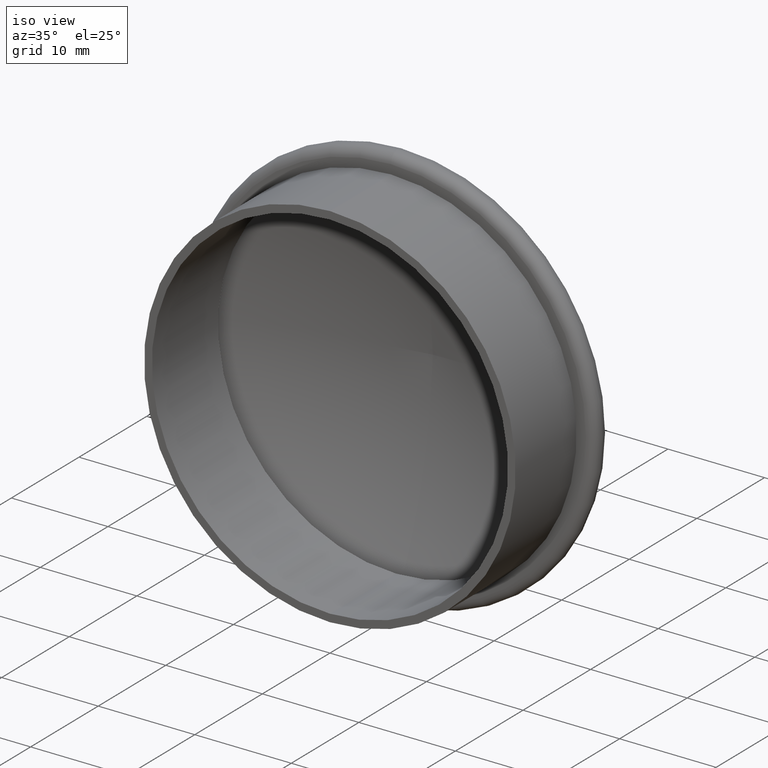
[diagram: clean part render]
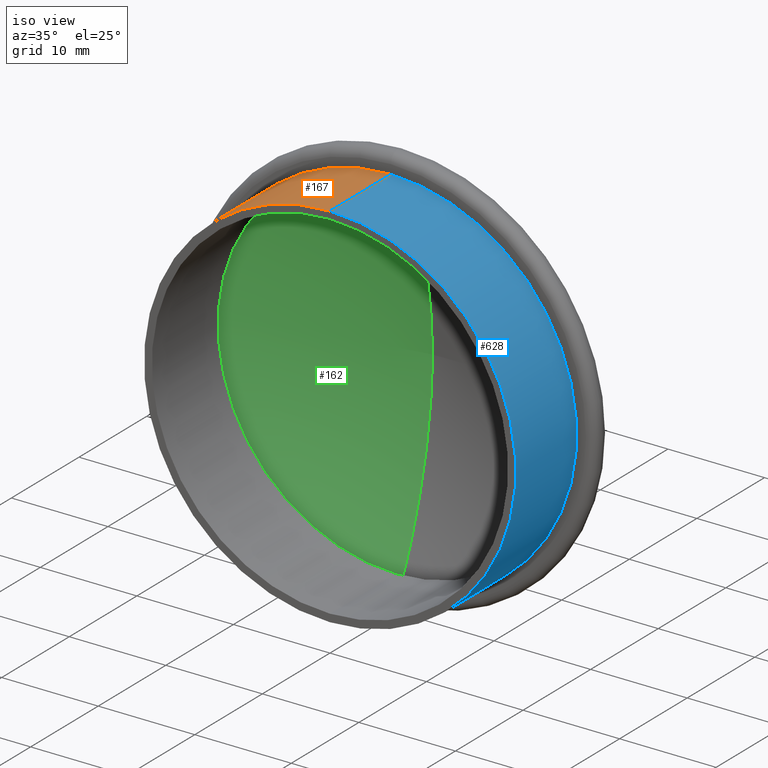
[diagram: same view with three faces highlighted in distinct colors, each labeled with its STEP entity id]
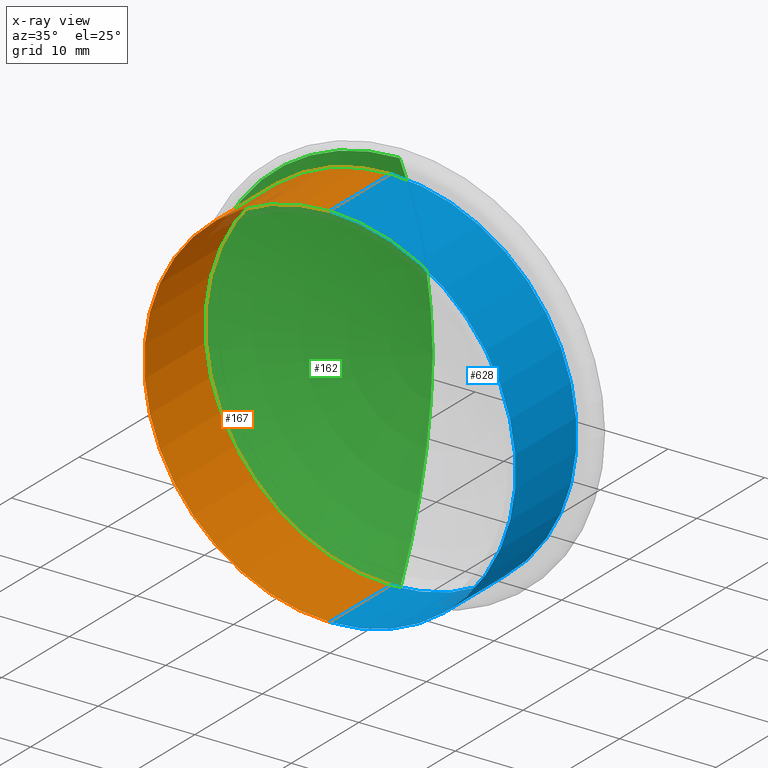
[diagram: x-ray of the same camera — body ghosted, the three highlighted faces saturated]
A machine part, iso view with three faces highlighted in distinct colors.
The next image is the same camera in x-ray (body ghosted, the three faces saturated) — at least one of them is partly hidden behind the body in this view.
Their STEP definitions:

[orange] entity #167 — the highlighted cylindrical surface (partial cylindrical patch) has radius 19.25 mm, axis along (-0, -1, -0).
#17 = ORIENTED_EDGE ( 'NONE', *, *, #348, .T. ) ;
#18 = DIRECTION ( 'NONE',  ( 0.0000000000000000000, 0.0000000000000000000, -1.000000000000000000 ) ) ;
#31 = DIRECTION ( 'NONE',  ( 0.0000000000000000000, 0.0000000000000000000, -1.000000000000000000 ) ) ;
#33 = CYLINDRICAL_SURFACE ( 'NONE', #390, 19.25000000000000400 ) ;
#42 = CARTESIAN_POINT ( 'NONE',  ( 0.0000000000000000000, 9.000000000000000000, 0.0000000000000000000 ) ) ;
#54 = LINE ( 'NONE', #250, #581 ) ;
#71 = CARTESIAN_POINT ( 'NONE',  ( 0.0000000000000000000, 0.0000000000000000000, -19.25000000000000400 ) ) ;
#85 = VERTEX_POINT ( 'NONE', #528 ) ;
#93 = DIRECTION ( 'NONE',  ( -0.0000000000000000000, -1.000000000000000000, -0.0000000000000000000 ) ) ;
#97 = VECTOR ( 'NONE', #428, 1000.000000000000000 ) ;
#100 = EDGE_CURVE ( 'NONE', #248, #85, #154, .T. ) ;
#120 = VERTEX_POINT ( 'NONE', #314 ) ;
#125 = DIRECTION ( 'NONE',  ( -0.0000000000000000000, -1.000000000000000000, -0.0000000000000000000 ) ) ;
#131 = VERTEX_POINT ( 'NONE', #148 ) ;
#138 = CARTESIAN_POINT ( 'NONE',  ( 2.357445088358655500E-015, 0.0000000000000000000, 19.25000000000000400 ) ) ;
#148 = CARTESIAN_POINT ( 'NONE',  ( 2.357445088358655500E-015, 9.000000000000000000, 19.25000000000000400 ) ) ;
#154 = CIRCLE ( 'NONE', #394, 19.25000000000000400 ) ;
#160 = CIRCLE ( 'NONE', #358, 19.25000000000000400 ) ;
#167 = ADVANCED_FACE ( 'NONE', ( #351 ), #33, .T. ) ;
#171 = ORIENTED_EDGE ( 'NONE', *, *, #335, .T. ) ;
#196 = DIRECTION ( 'NONE',  ( -0.0000000000000000000, -1.000000000000000000, -0.0000000000000000000 ) ) ;
#206 = EDGE_CURVE ( 'NONE', #131, #248, #54, .T. ) ;
#248 = VERTEX_POINT ( 'NONE', #138 ) ;
#250 = CARTESIAN_POINT ( 'NONE',  ( 2.357445088358655500E-015, 0.0000000000000000000, 19.25000000000000400 ) ) ;
#314 = CARTESIAN_POINT ( 'NONE',  ( 0.0000000000000000000, 9.000000000000000000, -19.25000000000000400 ) ) ;
#335 = EDGE_CURVE ( 'NONE', #131, #120, #160, .T. ) ;
#348 = EDGE_CURVE ( 'NONE', #120, #85, #505, .T. ) ;
#351 = FACE_OUTER_BOUND ( 'NONE', #417, .T. ) ;
#358 = AXIS2_PLACEMENT_3D ( 'NONE', #42, #93, #555 ) ;
#378 = ORIENTED_EDGE ( 'NONE', *, *, #206, .F. ) ;
#390 = AXIS2_PLACEMENT_3D ( 'NONE', #627, #125, #31 ) ;
#394 = AXIS2_PLACEMENT_3D ( 'NONE', #458, #196, #18 ) ;
#417 = EDGE_LOOP ( 'NONE', ( #378, #171, #17, #418 ) ) ;
#418 = ORIENTED_EDGE ( 'NONE', *, *, #100, .F. ) ;
#428 = DIRECTION ( 'NONE',  ( -0.0000000000000000000, -1.000000000000000000, -0.0000000000000000000 ) ) ;
#455 = DIRECTION ( 'NONE',  ( -0.0000000000000000000, -1.000000000000000000, -0.0000000000000000000 ) ) ;
#458 = CARTESIAN_POINT ( 'NONE',  ( 0.0000000000000000000, 0.0000000000000000000, 0.0000000000000000000 ) ) ;
#505 = LINE ( 'NONE', #71, #97 ) ;
#528 = CARTESIAN_POINT ( 'NONE',  ( 0.0000000000000000000, 0.0000000000000000000, -19.25000000000000400 ) ) ;
#555 = DIRECTION ( 'NONE',  ( 0.0000000000000000000, 0.0000000000000000000, -1.000000000000000000 ) ) ;
#581 = VECTOR ( 'NONE', #455, 1000.000000000000000 ) ;
#627 = CARTESIAN_POINT ( 'NONE',  ( 0.0000000000000000000, 0.0000000000000000000, 0.0000000000000000000 ) ) ;

[blue] entity #628 — the highlighted cylindrical surface (partial cylindrical patch) has radius 19.25 mm, axis along (-0, -1, -0).
#32 = AXIS2_PLACEMENT_3D ( 'NONE', #550, #243, #136 ) ;
#41 = DIRECTION ( 'NONE',  ( -0.0000000000000000000, -1.000000000000000000, -0.0000000000000000000 ) ) ;
#45 = EDGE_CURVE ( 'NONE', #120, #131, #408, .T. ) ;
#54 = LINE ( 'NONE', #250, #581 ) ;
#71 = CARTESIAN_POINT ( 'NONE',  ( 0.0000000000000000000, 0.0000000000000000000, -19.25000000000000400 ) ) ;
#85 = VERTEX_POINT ( 'NONE', #528 ) ;
#97 = VECTOR ( 'NONE', #428, 1000.000000000000000 ) ;
#120 = VERTEX_POINT ( 'NONE', #314 ) ;
#131 = VERTEX_POINT ( 'NONE', #148 ) ;
#136 = DIRECTION ( 'NONE',  ( 0.0000000000000000000, 0.0000000000000000000, -1.000000000000000000 ) ) ;
#138 = CARTESIAN_POINT ( 'NONE',  ( 2.357445088358655500E-015, 0.0000000000000000000, 19.25000000000000400 ) ) ;
#148 = CARTESIAN_POINT ( 'NONE',  ( 2.357445088358655500E-015, 9.000000000000000000, 19.25000000000000400 ) ) ;
#155 = AXIS2_PLACEMENT_3D ( 'NONE', #468, #465, #324 ) ;
#206 = EDGE_CURVE ( 'NONE', #131, #248, #54, .T. ) ;
#229 = AXIS2_PLACEMENT_3D ( 'NONE', #286, #41, #441 ) ;
#243 = DIRECTION ( 'NONE',  ( -0.0000000000000000000, -1.000000000000000000, -0.0000000000000000000 ) ) ;
#248 = VERTEX_POINT ( 'NONE', #138 ) ;
#250 = CARTESIAN_POINT ( 'NONE',  ( 2.357445088358655500E-015, 0.0000000000000000000, 19.25000000000000400 ) ) ;
#262 = ORIENTED_EDGE ( 'NONE', *, *, #206, .T. ) ;
#267 = EDGE_CURVE ( 'NONE', #85, #248, #541, .T. ) ;
#286 = CARTESIAN_POINT ( 'NONE',  ( 0.0000000000000000000, 9.000000000000000000, 0.0000000000000000000 ) ) ;
#295 = FACE_OUTER_BOUND ( 'NONE', #482, .T. ) ;
#312 = ORIENTED_EDGE ( 'NONE', *, *, #267, .F. ) ;
#314 = CARTESIAN_POINT ( 'NONE',  ( 0.0000000000000000000, 9.000000000000000000, -19.25000000000000400 ) ) ;
#324 = DIRECTION ( 'NONE',  ( 0.0000000000000000000, 0.0000000000000000000, -1.000000000000000000 ) ) ;
#333 = ORIENTED_EDGE ( 'NONE', *, *, #348, .F. ) ;
#348 = EDGE_CURVE ( 'NONE', #120, #85, #505, .T. ) ;
#408 = CIRCLE ( 'NONE', #229, 19.25000000000000400 ) ;
#428 = DIRECTION ( 'NONE',  ( -0.0000000000000000000, -1.000000000000000000, -0.0000000000000000000 ) ) ;
#441 = DIRECTION ( 'NONE',  ( 0.0000000000000000000, 0.0000000000000000000, -1.000000000000000000 ) ) ;
#455 = DIRECTION ( 'NONE',  ( -0.0000000000000000000, -1.000000000000000000, -0.0000000000000000000 ) ) ;
#465 = DIRECTION ( 'NONE',  ( -0.0000000000000000000, -1.000000000000000000, -0.0000000000000000000 ) ) ;
#468 = CARTESIAN_POINT ( 'NONE',  ( 0.0000000000000000000, 0.0000000000000000000, 0.0000000000000000000 ) ) ;
#473 = ORIENTED_EDGE ( 'NONE', *, *, #45, .T. ) ;
#482 = EDGE_LOOP ( 'NONE', ( #473, #262, #312, #333 ) ) ;
#505 = LINE ( 'NONE', #71, #97 ) ;
#528 = CARTESIAN_POINT ( 'NONE',  ( 0.0000000000000000000, 0.0000000000000000000, -19.25000000000000400 ) ) ;
#541 = CIRCLE ( 'NONE', #32, 19.25000000000000400 ) ;
#550 = CARTESIAN_POINT ( 'NONE',  ( 0.0000000000000000000, 0.0000000000000000000, 0.0000000000000000000 ) ) ;
#581 = VECTOR ( 'NONE', #455, 1000.000000000000000 ) ;
#623 = CYLINDRICAL_SURFACE ( 'NONE', #155, 19.25000000000000400 ) ;
#628 = ADVANCED_FACE ( 'NONE', ( #295 ), #623, .T. ) ;

[green] entity #162 — the highlighted toroidal blend (fillet) surface has major radius 1.1871 mm and minor (blend) radius 49.2 mm.
#24 = EDGE_LOOP ( 'NONE', ( #487, #91, #367 ) ) ;
#43 = CIRCLE ( 'NONE', #488, 49.20000000000000300 ) ;
#67 = DIRECTION ( 'NONE',  ( -0.0000000000000000000, -1.000000000000000000, -0.0000000000000000000 ) ) ;
#84 = CARTESIAN_POINT ( 'NONE',  ( 0.0000000000000000000, 15.19977076228066400, -6.505213034913026600E-016 ) ) ;
#91 = ORIENTED_EDGE ( 'NONE', *, *, #593, .T. ) ;
#101 = VERTEX_POINT ( 'NONE', #366 ) ;
#126 = EDGE_CURVE ( 'NONE', #228, #101, #372, .T. ) ;
#162 = ADVANCED_FACE ( 'NONE', ( #491 ), #392, .F. ) ;
#177 = VERTEX_POINT ( 'NONE', #84 ) ;
#217 = CARTESIAN_POINT ( 'NONE',  ( 0.0000000000000000000, -33.98590595171396700, 0.0000000000000000000 ) ) ;
#222 = DIRECTION ( 'NONE',  ( -0.0000000000000000000, -1.000000000000000000, -0.0000000000000000000 ) ) ;
#225 = CIRCLE ( 'NONE', #284, 49.20000000000000300 ) ;
#228 = VERTEX_POINT ( 'NONE', #518 ) ;
#259 = DIRECTION ( 'NONE',  ( 0.0000000000000000000, 0.0000000000000000000, -1.000000000000000000 ) ) ;
#284 = AXIS2_PLACEMENT_3D ( 'NONE', #305, #459, #303 ) ;
#303 = DIRECTION ( 'NONE',  ( 0.0000000000000000000, 0.0000000000000000000, 1.000000000000000000 ) ) ;
#305 = CARTESIAN_POINT ( 'NONE',  ( 0.0000000000000000000, -33.98590595171396700, 1.187099905823745500 ) ) ;
#366 = CARTESIAN_POINT ( 'NONE',  ( 0.0000000000000000000, 10.28022550477257900, -20.28729428532989200 ) ) ;
#367 = ORIENTED_EDGE ( 'NONE', *, *, #126, .T. ) ;
#372 = CIRCLE ( 'NONE', #382, 20.28729428532989200 ) ;
#375 = EDGE_CURVE ( 'NONE', #177, #101, #225, .T. ) ;
#382 = AXIS2_PLACEMENT_3D ( 'NONE', #566, #67, #259 ) ;
#392 = TOROIDAL_SURFACE ( 'NONE', #440, -1.187099905823745500, 49.20000000000000300 ) ;
#440 = AXIS2_PLACEMENT_3D ( 'NONE', #217, #222, #583 ) ;
#459 = DIRECTION ( 'NONE',  ( -1.000000000000000000, 0.0000000000000000000, 0.0000000000000000000 ) ) ;
#487 = ORIENTED_EDGE ( 'NONE', *, *, #375, .F. ) ;
#488 = AXIS2_PLACEMENT_3D ( 'NONE', #615, #576, #606 ) ;
#491 = FACE_OUTER_BOUND ( 'NONE', #24, .T. ) ;
#518 = CARTESIAN_POINT ( 'NONE',  ( 2.491378235624782400E-015, 10.28022550477257900, 20.28729428532989200 ) ) ;
#566 = CARTESIAN_POINT ( 'NONE',  ( 0.0000000000000000000, 10.28022550477257900, 0.0000000000000000000 ) ) ;
#576 = DIRECTION ( 'NONE',  ( 1.000000000000000000, 0.0000000000000000000, -1.224646799147353200E-016 ) ) ;
#583 = DIRECTION ( 'NONE',  ( 0.0000000000000000000, 0.0000000000000000000, -1.000000000000000000 ) ) ;
#593 = EDGE_CURVE ( 'NONE', #177, #228, #43, .T. ) ;
#606 = DIRECTION ( 'NONE',  ( -1.224646799147353200E-016, 0.0000000000000000000, -1.000000000000000000 ) ) ;
#615 = CARTESIAN_POINT ( 'NONE',  ( -1.453778099935174200E-016, -33.98590595171396700, -1.187099905823745500 ) ) ;